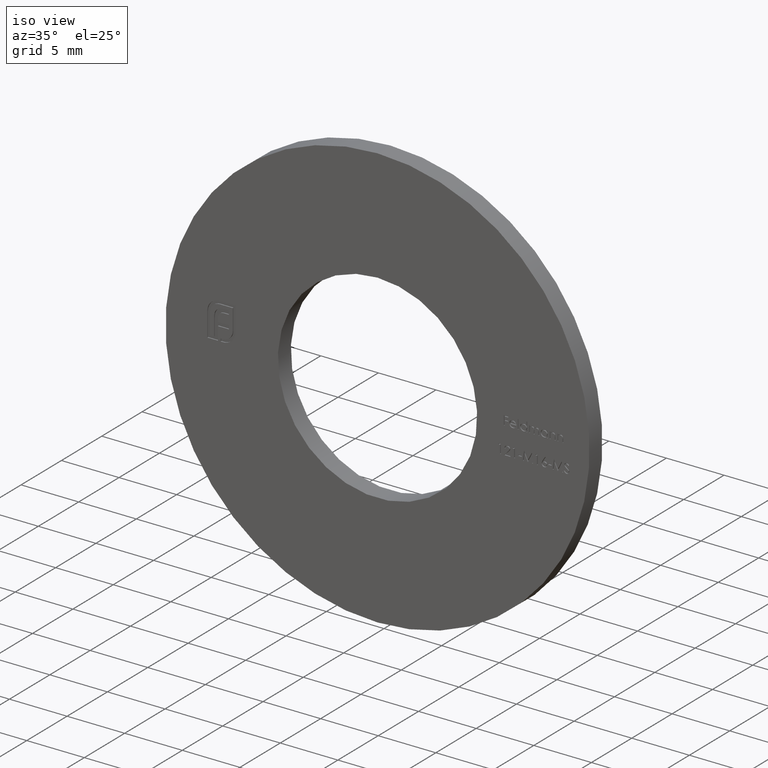
[diagram: clean part render]
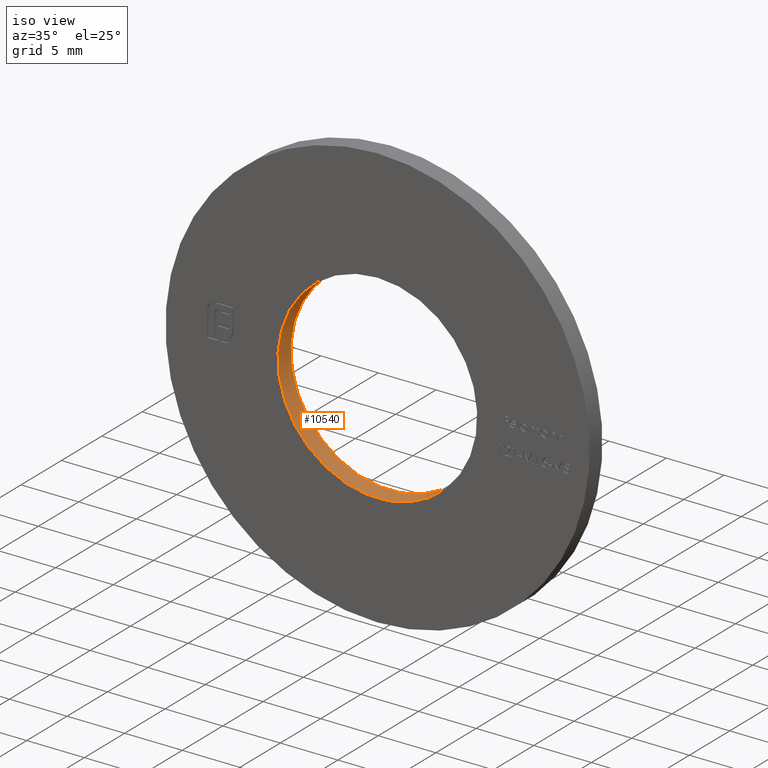
[diagram: same view with one face highlighted and labeled with its STEP entity id]
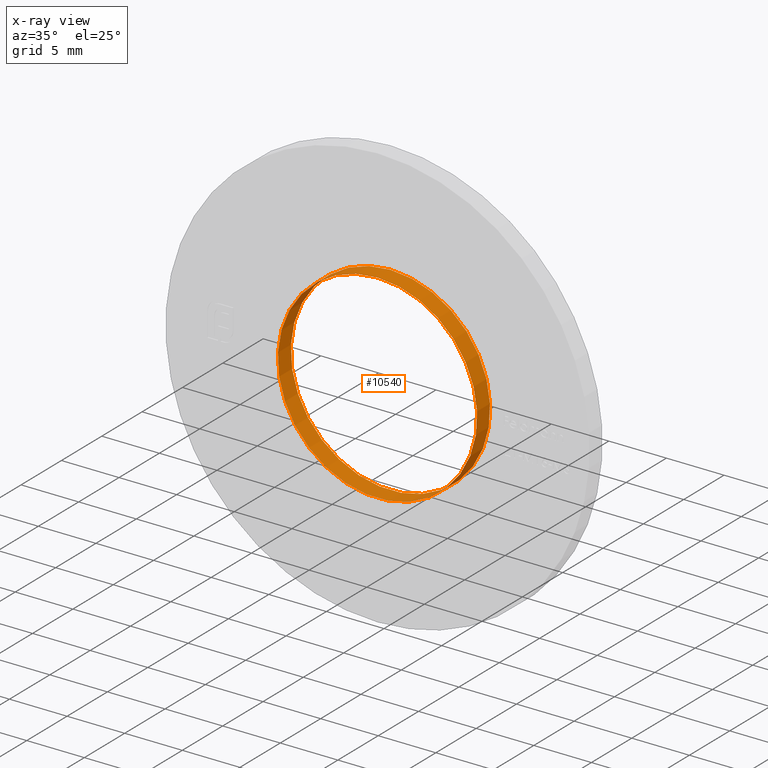
[diagram: x-ray of the same camera — body ghosted, the highlighted face saturated]
A machine part, iso view. The second image highlights one B-rep face of the part: STEP entity #10540.
The next image is the same camera in x-ray: the body ghosted, the highlighted face saturated — about 0% of this face is hidden behind the body in this view.
In plain terms, the highlighted cylindrical surface (bore or boss wall) has radius 8.65 mm, axis along (-0, -1, -0).
Its self-contained STEP definition (entity closure, byte-faithful):
#149 = DIRECTION ( 'NONE',  ( 0.000000000000000000, 1.000000000000000000, 0.000000000000000000 ) ) ;
#1169 = CARTESIAN_POINT ( 'NONE',  ( 0.000000000000000000, -0.8000000000000000444, 0.000000000000000000 ) ) ;
#1539 = CYLINDRICAL_SURFACE ( 'NONE', #6554, 8.650000000000002132 ) ;
#2179 = AXIS2_PLACEMENT_3D ( 'NONE', #6769, #149, #4907 ) ;
#2272 = DIRECTION ( 'NONE',  ( 0.000000000000000000, 1.000000000000000000, 0.000000000000000000 ) ) ;
#2382 = CIRCLE ( 'NONE', #2179, 8.650000000000002132 ) ;
#2694 = DIRECTION ( 'NONE',  ( -0.000000000000000000, -1.000000000000000000, -0.000000000000000000 ) ) ;
#2698 = VERTEX_POINT ( 'NONE', #9004 ) ;
#3256 = CARTESIAN_POINT ( 'NONE',  ( 0.000000000000000000, 0.8000000000000000444, 8.650000000000002132 ) ) ;
#3707 = EDGE_CURVE ( 'NONE', #5693, #5693, #2382, .T. ) ;
#4468 = ORIENTED_EDGE ( 'NONE', *, *, #3707, .T. ) ;
#4849 = EDGE_LOOP ( 'NONE', ( #8280 ) ) ;
#4907 = DIRECTION ( 'NONE',  ( 0.000000000000000000, 0.000000000000000000, 1.000000000000000000 ) ) ;
#5397 = EDGE_CURVE ( 'NONE', #2698, #2698, #11947, .T. ) ;
#5693 = VERTEX_POINT ( 'NONE', #3256 ) ;
#6554 = AXIS2_PLACEMENT_3D ( 'NONE', #7459, #2694, #7414 ) ;
#6769 = CARTESIAN_POINT ( 'NONE',  ( 0.000000000000000000, 0.8000000000000000444, 0.000000000000000000 ) ) ;
#7414 = DIRECTION ( 'NONE',  ( 0.000000000000000000, 0.000000000000000000, -1.000000000000000000 ) ) ;
#7459 = CARTESIAN_POINT ( 'NONE',  ( 0.000000000000000000, 0.8000000000000000444, 0.000000000000000000 ) ) ;
#7947 = DIRECTION ( 'NONE',  ( 0.000000000000000000, 0.000000000000000000, 1.000000000000000000 ) ) ;
#8005 = FACE_OUTER_BOUND ( 'NONE', #4849, .T. ) ;
#8280 = ORIENTED_EDGE ( 'NONE', *, *, #5397, .F. ) ;
#9004 = CARTESIAN_POINT ( 'NONE',  ( 0.000000000000000000, -0.8000000000000000444, 8.650000000000002132 ) ) ;
#9147 = AXIS2_PLACEMENT_3D ( 'NONE', #1169, #2272, #7947 ) ;
#10540 = ADVANCED_FACE ( 'NONE', ( #12359, #8005 ), #1539, .F. ) ;
#11588 = EDGE_LOOP ( 'NONE', ( #4468 ) ) ;
#11947 = CIRCLE ( 'NONE', #9147, 8.650000000000002132 ) ;
#12359 = FACE_OUTER_BOUND ( 'NONE', #11588, .T. ) ;